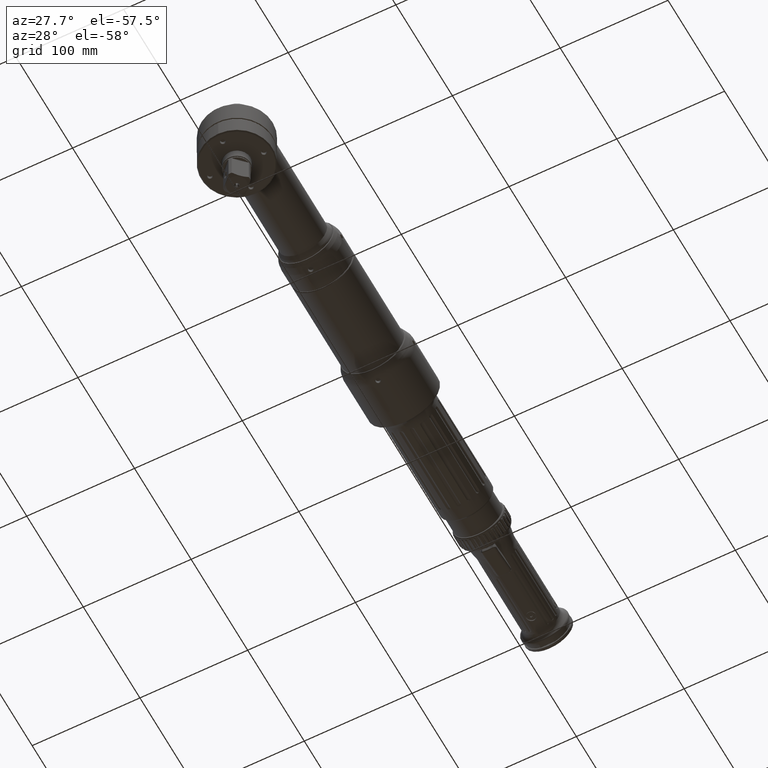
[diagram: clean part render]
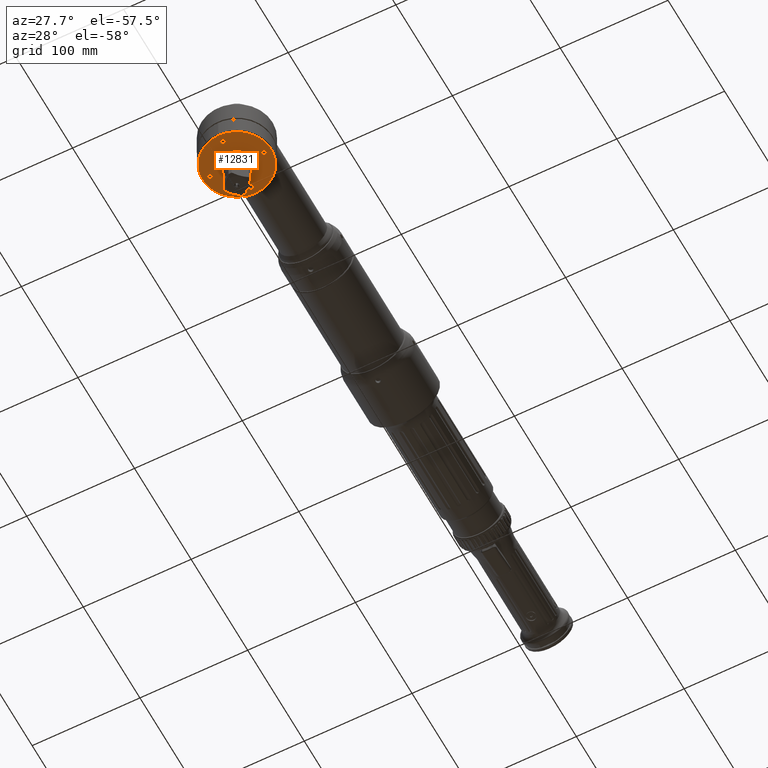
[diagram: same view with one face highlighted and labeled with its STEP entity id]
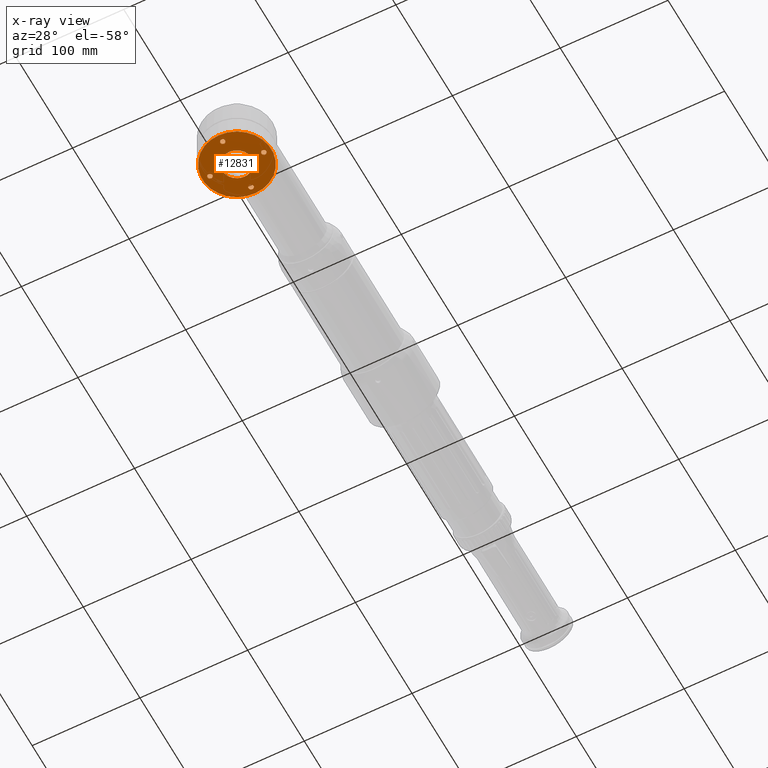
[diagram: x-ray of the same camera — body ghosted, the highlighted face saturated]
A machine part, auxiliary view. The second image highlights one B-rep face of the part: STEP entity #12831.
The next image is the same camera in x-ray: the body ghosted, the highlighted face saturated — about 0% of this face is hidden behind the body in this view.
In plain terms, the highlighted planar face has unit normal (0, -0, -1).
Its self-contained STEP definition (entity closure, byte-faithful):
#123=PLANE('',#13764);
#564=FACE_BOUND('',#3436,.T.);
#565=FACE_BOUND('',#3437,.T.);
#566=FACE_BOUND('',#3438,.T.);
#567=FACE_BOUND('',#3439,.T.);
#568=FACE_BOUND('',#3440,.T.);
#2592=FACE_OUTER_BOUND('',#3435,.T.);
#3435=EDGE_LOOP('',(#8594));
#3436=EDGE_LOOP('',(#8595));
#3437=EDGE_LOOP('',(#8596));
#3438=EDGE_LOOP('',(#8597));
#3439=EDGE_LOOP('',(#8598));
#3440=EDGE_LOOP('',(#8599));
#4554=CIRCLE('',#13763,13.55);
#4555=CIRCLE('',#13765,32.);
#4556=CIRCLE('',#13766,2.3);
#4557=CIRCLE('',#13767,2.3);
#4558=CIRCLE('',#13768,2.3);
#4559=CIRCLE('',#13769,2.3);
#5577=VERTEX_POINT('',#20248);
#5578=VERTEX_POINT('',#20251);
#5579=VERTEX_POINT('',#20253);
#5580=VERTEX_POINT('',#20255);
#5581=VERTEX_POINT('',#20257);
#5582=VERTEX_POINT('',#20259);
#6793=EDGE_CURVE('',#5577,#5577,#4554,.T.);
#6794=EDGE_CURVE('',#5578,#5578,#4555,.T.);
#6795=EDGE_CURVE('',#5579,#5579,#4556,.T.);
#6796=EDGE_CURVE('',#5580,#5580,#4557,.T.);
#6797=EDGE_CURVE('',#5581,#5581,#4558,.T.);
#6798=EDGE_CURVE('',#5582,#5582,#4559,.T.);
#8594=ORIENTED_EDGE('',*,*,#6794,.F.);
#8595=ORIENTED_EDGE('',*,*,#6795,.T.);
#8596=ORIENTED_EDGE('',*,*,#6796,.T.);
#8597=ORIENTED_EDGE('',*,*,#6797,.T.);
#8598=ORIENTED_EDGE('',*,*,#6798,.T.);
#8599=ORIENTED_EDGE('',*,*,#6793,.F.);
#12831=ADVANCED_FACE('',(#2592,#564,#565,#566,#567,#568),#123,.T.);
#13763=AXIS2_PLACEMENT_3D('',#20249,#15690,#15691);
#13764=AXIS2_PLACEMENT_3D('',#20250,#15692,#15693);
#13765=AXIS2_PLACEMENT_3D('',#20252,#15694,#15695);
#13766=AXIS2_PLACEMENT_3D('',#20254,#15696,#15697);
#13767=AXIS2_PLACEMENT_3D('',#20256,#15698,#15699);
#13768=AXIS2_PLACEMENT_3D('',#20258,#15700,#15701);
#13769=AXIS2_PLACEMENT_3D('',#20260,#15702,#15703);
#15690=DIRECTION('center_axis',(2.61889209796712E-15,-7.00649232162409E-46,
-1.));
#15691=DIRECTION('ref_axis',(1.11022302462538E-16,1.,2.90755430617256E-31));
#15692=DIRECTION('center_axis',(2.61889209796712E-15,-7.00649232162409E-46,
-1.));
#15693=DIRECTION('ref_axis',(1.,0.,2.8421709430404E-15));
#15694=DIRECTION('center_axis',(-2.61889209796712E-15,7.00649232162409E-46,
1.));
#15695=DIRECTION('ref_axis',(1.11022302462538E-16,1.,2.90755430617256E-31));
#15696=DIRECTION('center_axis',(-2.61889209796712E-15,7.00649232162409E-46,
1.));
#15697=DIRECTION('ref_axis',(1.,-1.11022302462538E-16,2.61889209796712E-15));
#15698=DIRECTION('center_axis',(-2.61889209796712E-15,7.00649232162409E-46,
1.));
#15699=DIRECTION('ref_axis',(1.,-1.11022302462538E-16,2.61889209796712E-15));
#15700=DIRECTION('center_axis',(-2.61889209796712E-15,7.00649232162409E-46,
1.));
#15701=DIRECTION('ref_axis',(1.,-1.11022302462538E-16,2.61889209796712E-15));
#15702=DIRECTION('center_axis',(-2.61889209796712E-15,7.00649232162409E-46,
1.));
#15703=DIRECTION('ref_axis',(1.,-1.11022302462538E-16,2.61889209796712E-15));
#20248=CARTESIAN_POINT('',(2.89825304456733E-15,-13.55,-49.4999999999999));
#20249=CARTESIAN_POINT('Origin',(6.06200165577939E-15,1.77635683940025E-14,
-49.4999999999999));
#20250=CARTESIAN_POINT('Origin',(2.39826567451562E-15,-33.,-49.4999999999999));
#20251=CARTESIAN_POINT('',(6.42815773424969E-15,-32.,-49.4999999999999));
#20252=CARTESIAN_POINT('Origin',(6.06200165577939E-15,1.77635683940025E-14,
-49.4999999999999));
#20253=CARTESIAN_POINT('',(2.30000000000001,25.,-49.4999999999999));
#20254=CARTESIAN_POINT('Origin',(1.18991762152112E-14,25.,-49.4999999999999));
#20255=CARTESIAN_POINT('',(2.3,-25.,-49.4999999999999));
#20256=CARTESIAN_POINT('Origin',(3.58315729277527E-16,-25.,-49.4999999999999));
#20257=CARTESIAN_POINT('',(-22.7,2.02837746599021E-14,-49.5));
#20258=CARTESIAN_POINT('Origin',(-25.,2.0539125955566E-14,-49.5));
#20259=CARTESIAN_POINT('',(27.3,1.47326595367752E-14,-49.4999999999998));
#20260=CARTESIAN_POINT('Origin',(25.,1.49880108324391E-14,-49.4999999999998));